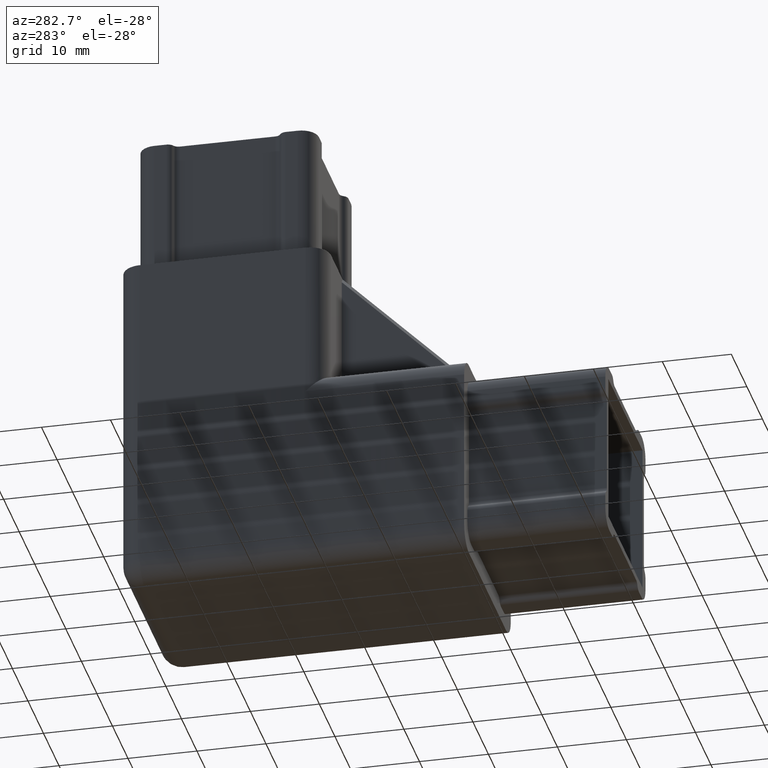
[diagram: clean part render]
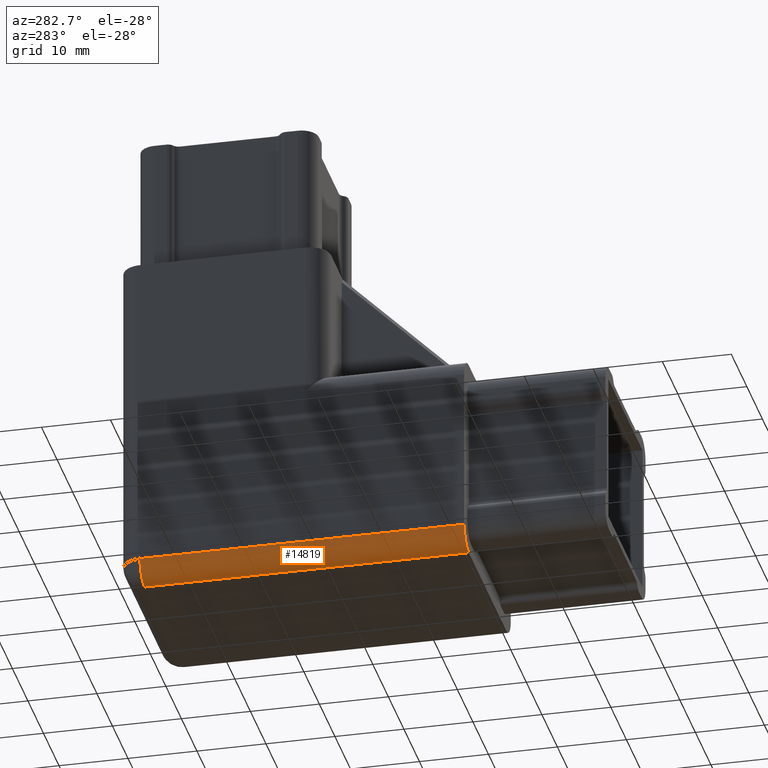
[diagram: same view with one face highlighted and labeled with its STEP entity id]
A machine part, auxiliary view. The second image highlights one B-rep face of the part: STEP entity #14819.
In plain terms, the highlighted cylindrical surface (edge-blend (fillet) strip) has radius 3 mm, axis along (0, 1, 0).
Its self-contained STEP definition (entity closure, byte-faithful):
#967 = FACE_OUTER_BOUND ( 'NONE', #1187, .T. ) ;
#1186 = ORIENTED_EDGE ( 'NONE', *, *, #10357, .F. ) ;
#1187 = EDGE_LOOP ( 'NONE', ( #1186, #10342, #7539, #11986 ) ) ;
#2215 = DIRECTION ( 'NONE',  ( 0.0000000000000000000, 0.0000000000000000000, 1.000000000000000000 ) ) ;
#2508 = CARTESIAN_POINT ( 'NONE',  ( 2.999999999999999100, 0.0000000000000000000, 0.0000000000000000000 ) ) ;
#2612 = CARTESIAN_POINT ( 'NONE',  ( 2.999999999999999100, -3.673940397442059900E-016, 3.000000000000000000 ) ) ;
#2667 = DIRECTION ( 'NONE',  ( 0.0000000000000000000, 1.224646799147353200E-016, -1.000000000000000000 ) ) ;
#3051 = VECTOR ( 'NONE', #7826, 1000.000000000000000 ) ;
#3297 = CIRCLE ( 'NONE', #13957, 3.000000000000000000 ) ;
#3386 = CARTESIAN_POINT ( 'NONE',  ( 2.999999999999999100, 0.0000000000000000000, 0.0000000000000000000 ) ) ;
#4587 = AXIS2_PLACEMENT_3D ( 'NONE', #7508, #8970, #11384 ) ;
#7141 = VERTEX_POINT ( 'NONE', #8153 ) ;
#7508 = CARTESIAN_POINT ( 'NONE',  ( 2.999999999999999100, 0.0000000000000000000, 3.000000000000000000 ) ) ;
#7539 = ORIENTED_EDGE ( 'NONE', *, *, #7727, .F. ) ;
#7727 = EDGE_CURVE ( 'NONE', #16408, #7141, #14532, .T. ) ;
#7826 = DIRECTION ( 'NONE',  ( 0.0000000000000000000, -1.000000000000000000, -0.0000000000000000000 ) ) ;
#8153 = CARTESIAN_POINT ( 'NONE',  ( 0.0000000000000000000, 47.00000000000000000, 3.000000000000000000 ) ) ;
#8708 = CYLINDRICAL_SURFACE ( 'NONE', #4587, 3.000000000000000000 ) ;
#8970 = DIRECTION ( 'NONE',  ( 0.0000000000000000000, 1.000000000000000000, 0.0000000000000000000 ) ) ;
#9068 = CARTESIAN_POINT ( 'NONE',  ( 0.0000000000000000000, 0.0000000000000000000, 3.000000000000000000 ) ) ;
#9756 = VERTEX_POINT ( 'NONE', #12158 ) ;
#10013 = DIRECTION ( 'NONE',  ( 0.0000000000000000000, 1.000000000000000000, 0.0000000000000000000 ) ) ;
#10031 = AXIS2_PLACEMENT_3D ( 'NONE', #16452, #10013, #2215 ) ;
#10174 = VERTEX_POINT ( 'NONE', #3386 ) ;
#10342 = ORIENTED_EDGE ( 'NONE', *, *, #12705, .F. ) ;
#10357 = EDGE_CURVE ( 'NONE', #9756, #10174, #3297, .T. ) ;
#11384 = DIRECTION ( 'NONE',  ( 0.0000000000000000000, 0.0000000000000000000, 1.000000000000000000 ) ) ;
#11418 = DIRECTION ( 'NONE',  ( 0.0000000000000000000, 1.000000000000000000, 0.0000000000000000000 ) ) ;
#11517 = LINE ( 'NONE', #2508, #13765 ) ;
#11986 = ORIENTED_EDGE ( 'NONE', *, *, #15363, .F. ) ;
#12158 = CARTESIAN_POINT ( 'NONE',  ( 0.0000000000000000000, -3.673940397442059900E-016, 3.000000000000000000 ) ) ;
#12705 = EDGE_CURVE ( 'NONE', #7141, #9756, #12966, .T. ) ;
#12966 = LINE ( 'NONE', #9068, #3051 ) ;
#13112 = DIRECTION ( 'NONE',  ( 0.0000000000000000000, -1.000000000000000000, -1.224646799147353200E-016 ) ) ;
#13765 = VECTOR ( 'NONE', #11418, 1000.000000000000000 ) ;
#13957 = AXIS2_PLACEMENT_3D ( 'NONE', #2612, #13112, #2667 ) ;
#14532 = CIRCLE ( 'NONE', #10031, 3.000000000000000000 ) ;
#14819 = ADVANCED_FACE ( 'NONE', ( #967 ), #8708, .T. ) ;
#15363 = EDGE_CURVE ( 'NONE', #10174, #16408, #11517, .T. ) ;
#15934 = CARTESIAN_POINT ( 'NONE',  ( 2.999999999999999100, 47.00000000000000000, 0.0000000000000000000 ) ) ;
#16408 = VERTEX_POINT ( 'NONE', #15934 ) ;
#16452 = CARTESIAN_POINT ( 'NONE',  ( 2.999999999999999100, 47.00000000000000000, 3.000000000000000000 ) ) ;